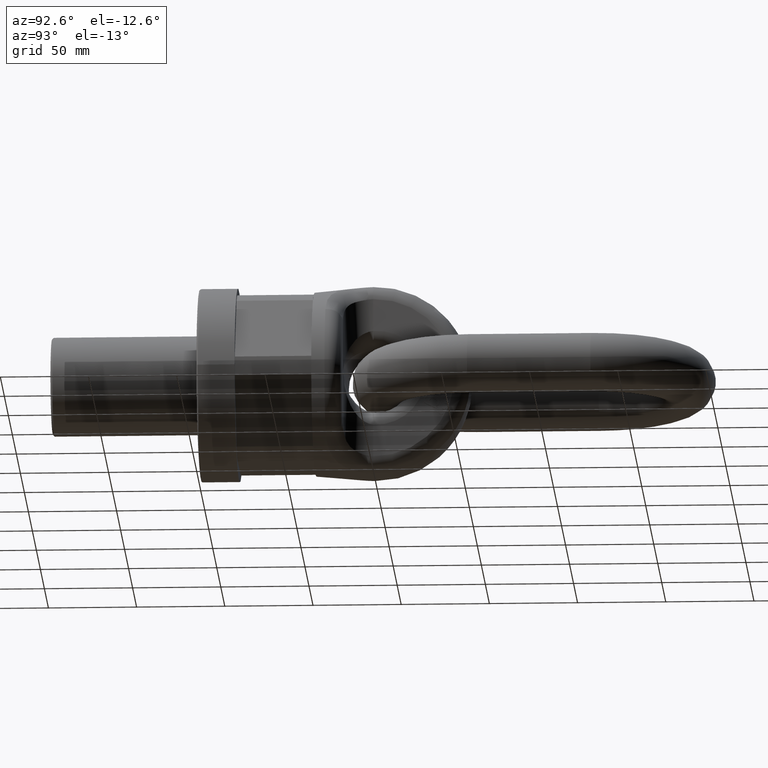
[diagram: clean part render]
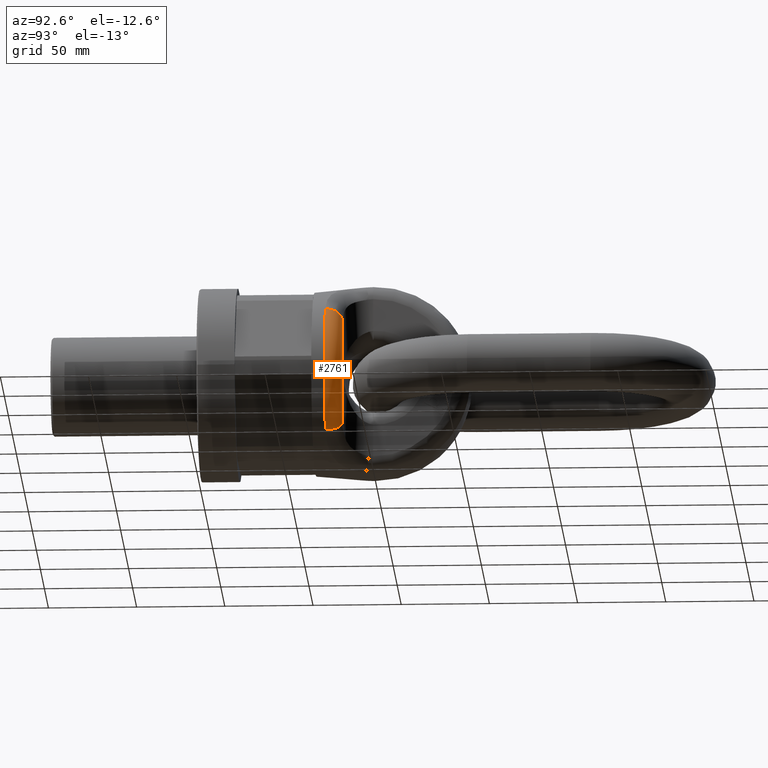
[diagram: same view with one face highlighted and labeled with its STEP entity id]
A machine part, auxiliary view. The second image highlights one B-rep face of the part: STEP entity #2761.
In plain terms, the highlighted toroidal blend (fillet) surface has major radius 44.0775 mm and minor (blend) radius 8.75 mm.
Its self-contained STEP definition (entity closure, byte-faithful):
#1790=TOROIDAL_SURFACE('',#5713,44.0775003286677,8.75);
#1905=FACE_OUTER_BOUND('',#3205,.T.);
#2761=ADVANCED_FACE('',(#1905),#1790,.T.);
#3205=EDGE_LOOP('',(#3960,#3961,#3962,#3963));
#3960=ORIENTED_EDGE('',*,*,#5254,.T.);
#3961=ORIENTED_EDGE('',*,*,#5073,.F.);
#3962=ORIENTED_EDGE('',*,*,#5255,.F.);
#3963=ORIENTED_EDGE('',*,*,#5062,.F.);
#4641=VERTEX_POINT('',#6963);
#4643=VERTEX_POINT('',#7001);
#4649=VERTEX_POINT('',#7046);
#4650=VERTEX_POINT('',#7048);
#5062=EDGE_CURVE('',#4649,#4650,#5555,.T.);
#5073=EDGE_CURVE('',#4641,#4643,#5560,.T.);
#5254=EDGE_CURVE('',#4649,#4643,#5567,.T.);
#5255=EDGE_CURVE('',#4650,#4641,#5568,.T.);
#5555=CIRCLE('',#5646,52.7907474358159);
#5560=CIRCLE('',#5654,44.0775003286677);
#5567=CIRCLE('',#5711,8.75);
#5568=CIRCLE('',#5712,8.75);
#5646=AXIS2_PLACEMENT_3D('',#7047,#5963,#5964);
#5654=AXIS2_PLACEMENT_3D('',#7101,#5979,#5980);
#5711=AXIS2_PLACEMENT_3D('',#8117,#6219,#6220);
#5712=AXIS2_PLACEMENT_3D('',#8154,#6221,#6222);
#5713=AXIS2_PLACEMENT_3D('',#8155,#6223,#6224);
#5963=DIRECTION('',(0.,-1.,0.));
#5964=DIRECTION('',(0.,0.,-1.));
#5979=DIRECTION('',(0.,1.,0.));
#5980=DIRECTION('',(0.,0.,1.));
#6219=DIRECTION('',(0.66293010145488,2.28856183412548E-16,0.748681294400376));
#6220=DIRECTION('',(0.748681294400376,0.,-0.66293010145488));
#6221=DIRECTION('',(-0.662930101454879,2.96858289696237E-16,0.748681294400377));
#6222=DIRECTION('',(0.748681294400377,0.,0.662930101454879));
#6223=DIRECTION('',(0.,1.,0.));
#6224=DIRECTION('',(0.,0.,1.));
#6963=CARTESIAN_POINT('',(33.,82.,29.2203017647612));
#7001=CARTESIAN_POINT('',(33.,82.,-29.2203017647612));
#7046=CARTESIAN_POINT('',(39.52344512261,72.4488602807413,-34.9965755535044));
#7047=CARTESIAN_POINT('',(0.,72.4488602807412,0.));
#7048=CARTESIAN_POINT('',(39.52344512261,72.4488602807413,34.9965755535044));
#7101=CARTESIAN_POINT('',(0.,82.,0.));
#8117=CARTESIAN_POINT('',(33.,73.25,-29.2203017647612));
#8154=CARTESIAN_POINT('',(33.,73.25,29.2203017647612));
#8155=CARTESIAN_POINT('',(0.,73.25,0.));